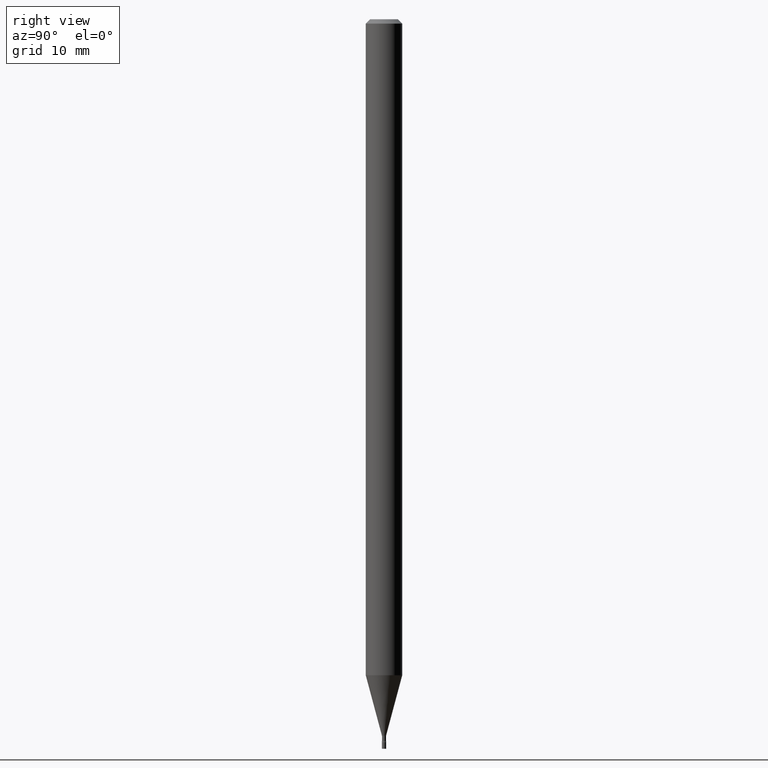
[diagram: clean part render]
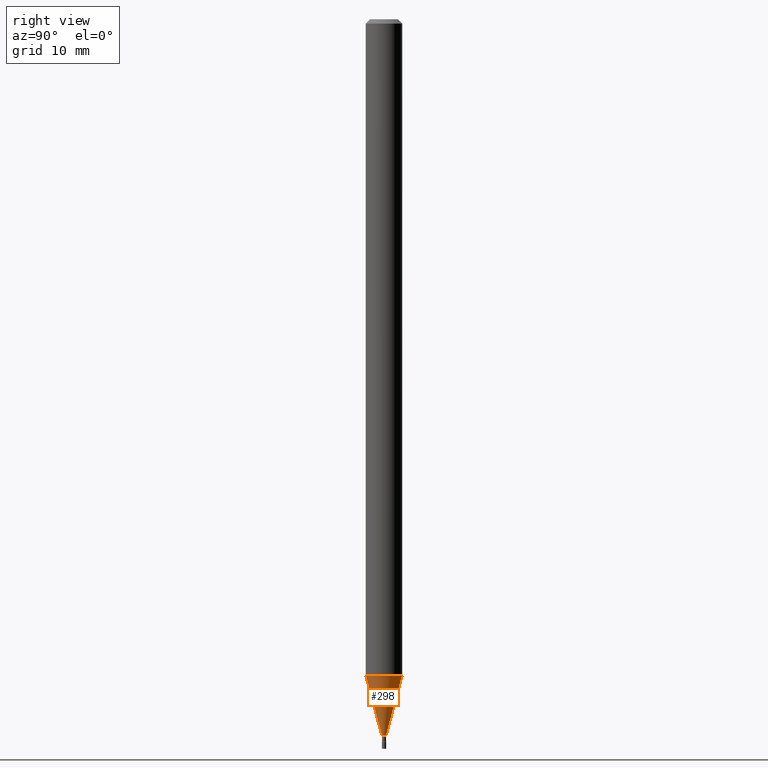
[diagram: same view with one face highlighted and labeled with its STEP entity id]
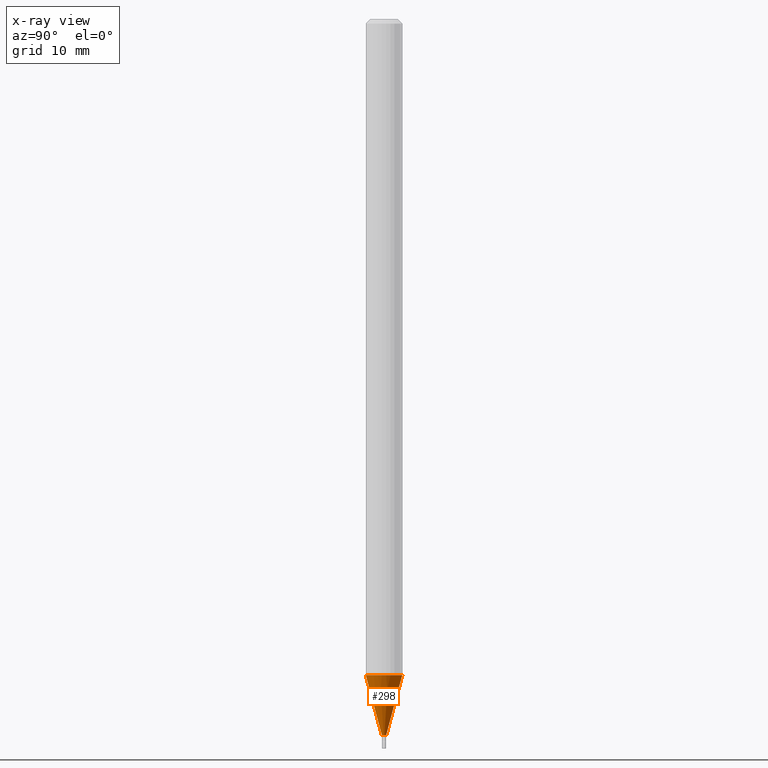
[diagram: x-ray of the same camera — body ghosted, the highlighted face saturated]
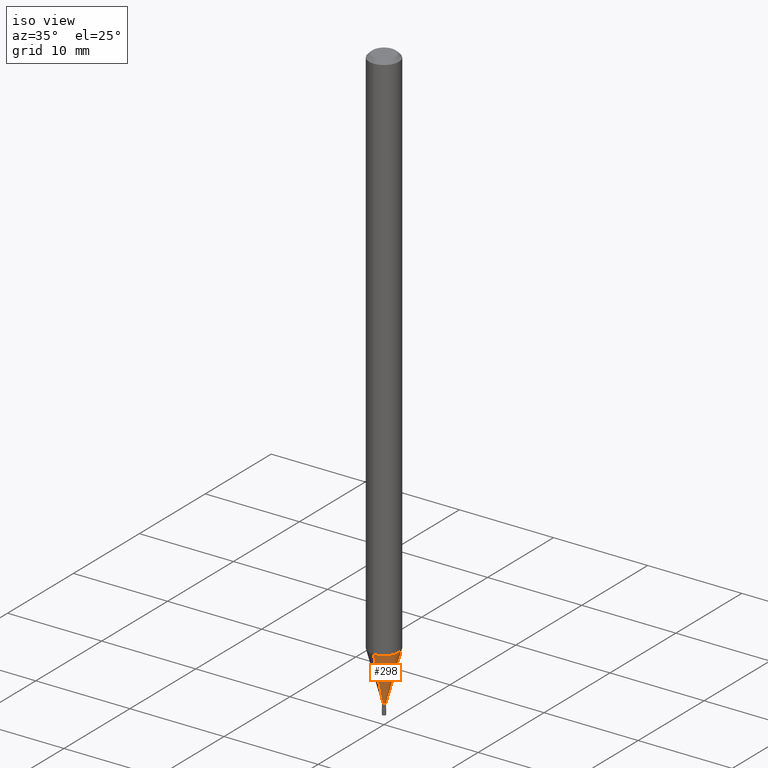
[diagram: same view with one face highlighted and labeled with its STEP entity id]
A machine part, right view. The second image highlights one B-rep face of the part: STEP entity #298.
The next image is the same camera in x-ray: the body ghosted, the highlighted face saturated — about 0% of this face is hidden behind the body in this view.
A second angle (iso view) of the same face is appended — the face is thin or edge-on in the first view.
In plain terms, the highlighted conical surface has half-angle 15 deg.
Its self-contained STEP definition (entity closure, byte-faithful):
#1 = DIRECTION ( 'NONE',  ( 1.839019923739599526E-15, 0.2588190451025248473, 0.9659258262890670910 ) ) ;
#3 = CARTESIAN_POINT ( 'NONE',  ( 4.440892098501173434E-16, 0.06249999999999213823, -2.248057782720306985 ) ) ;
#55 = DIRECTION ( 'NONE',  ( -6.982962677686265922E-15, -1.000000000000000000, 0.000000000000000000 ) ) ;
#68 = EDGE_LOOP ( 'NONE', ( #306, #468, #314, #300 ) ) ;
#72 = AXIS2_PLACEMENT_3D ( 'NONE', #454, #450, #55 ) ;
#82 = CONICAL_SURFACE ( 'NONE', #72, 0.007561112605663981683, 0.2617993877991501850 ) ;
#89 = VERTEX_POINT ( 'NONE', #444 ) ;
#103 = VERTEX_POINT ( 'NONE', #3 ) ;
#108 = AXIS2_PLACEMENT_3D ( 'NONE', #168, #372, #213 ) ;
#119 = EDGE_CURVE ( 'NONE', #89, #103, #459, .T. ) ;
#125 = CIRCLE ( 'NONE', #108, 0.007561112605663981683 ) ;
#163 = DIRECTION ( 'NONE',  ( -1.807323732225329350E-15, -0.2588190451025180194, 0.9659258262890689783 ) ) ;
#168 = CARTESIAN_POINT ( 'NONE',  ( 5.998789536058570030E-29, -8.565172513248719958E-15, -2.453092501787273338 ) ) ;
#180 = VERTEX_POINT ( 'NONE', #449 ) ;
#187 = VERTEX_POINT ( 'NONE', #369 ) ;
#205 = AXIS2_PLACEMENT_3D ( 'NONE', #238, #278, #435 ) ;
#213 = DIRECTION ( 'NONE',  ( -6.982962677686265922E-15, -1.000000000000000000, 0.000000000000000000 ) ) ;
#218 = FACE_OUTER_BOUND ( 'NONE', #68, .T. ) ;
#238 = CARTESIAN_POINT ( 'NONE',  ( 5.497397873750074245E-29, -7.849277071582922133E-15, -2.248057782720306541 ) ) ;
#247 = LINE ( 'NONE', #286, #304 ) ;
#249 = EDGE_CURVE ( 'NONE', #180, #103, #247, .T. ) ;
#256 = CARTESIAN_POINT ( 'NONE',  ( -5.279896712707474970E-17, -0.007561112605672546880, -2.453092501787273338 ) ) ;
#278 = DIRECTION ( 'NONE',  ( -2.445398830940119210E-29, 3.491581547376753841E-15, 1.000000000000000000 ) ) ;
#282 = EDGE_CURVE ( 'NONE', #187, #89, #379, .T. ) ;
#286 = CARTESIAN_POINT ( 'NONE',  ( 5.372493636224662941E-17, 0.007561112605655417353, -2.453092501787273338 ) ) ;
#298 = ADVANCED_FACE ( 'NONE', ( #218 ), #82, .T. ) ;
#300 = ORIENTED_EDGE ( 'NONE', *, *, #282, .F. ) ;
#304 = VECTOR ( 'NONE', #1, 39.37007874015748143 ) ;
#306 = ORIENTED_EDGE ( 'NONE', *, *, #404, .T. ) ;
#314 = ORIENTED_EDGE ( 'NONE', *, *, #119, .F. ) ;
#356 = VECTOR ( 'NONE', #163, 39.37007874015749564 ) ;
#369 = CARTESIAN_POINT ( 'NONE',  ( -5.279896712707474970E-17, -0.007561112605672546880, -2.453092501787273338 ) ) ;
#372 = DIRECTION ( 'NONE',  ( -2.445398830940119210E-29, 3.491581547376753841E-15, 1.000000000000000000 ) ) ;
#379 = LINE ( 'NONE', #256, #356 ) ;
#404 = EDGE_CURVE ( 'NONE', #187, #180, #125, .T. ) ;
#435 = DIRECTION ( 'NONE',  ( -6.982962677686265922E-15, -1.000000000000000000, 4.370956789862821150E-15 ) ) ;
#444 = CARTESIAN_POINT ( 'NONE',  ( -4.364351673553366464E-16, -0.06250000000000784095, -2.248057782720306097 ) ) ;
#449 = CARTESIAN_POINT ( 'NONE',  ( 2.489070731061822360E-16, 0.007561112605655418220, -2.453092501787273338 ) ) ;
#450 = DIRECTION ( 'NONE',  ( -2.445398830940119210E-29, 3.491581547376753841E-15, 1.000000000000000000 ) ) ;
#454 = CARTESIAN_POINT ( 'NONE',  ( 5.998789536058570030E-29, -8.565172513248719958E-15, -2.453092501787273338 ) ) ;
#459 = CIRCLE ( 'NONE', #205, 0.06250000000000000000 ) ;
#468 = ORIENTED_EDGE ( 'NONE', *, *, #249, .T. ) ;